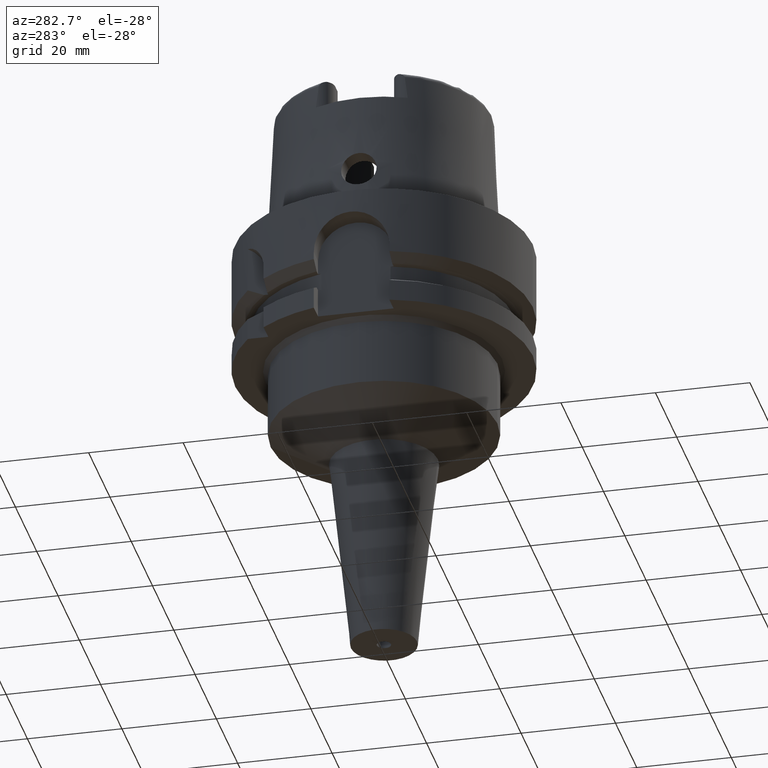
[diagram: clean part render]
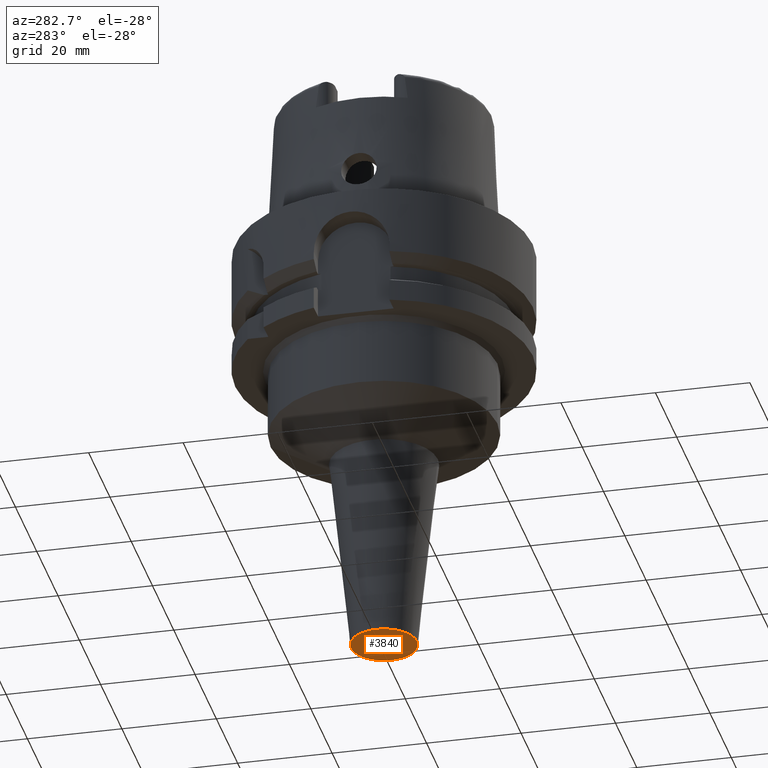
[diagram: same view with one face highlighted and labeled with its STEP entity id]
A machine part, auxiliary view. The second image highlights one B-rep face of the part: STEP entity #3840.
In plain terms, the highlighted planar face has unit normal (0, 0, -1).
Its self-contained STEP definition (entity closure, byte-faithful):
#1736=CARTESIAN_POINT('',(0.E0,0.E0,-9.E1));
#1737=DIRECTION('',(0.E0,0.E0,1.E0));
#1738=DIRECTION('',(0.E0,-1.E0,0.E0));
#1739=AXIS2_PLACEMENT_3D('',#1736,#1737,#1738);
#1744=CARTESIAN_POINT('',(0.E0,0.E0,-9.E1));
#1745=DIRECTION('',(0.E0,0.E0,1.E0));
#1746=DIRECTION('',(0.E0,1.E0,0.E0));
#1747=AXIS2_PLACEMENT_3D('',#1744,#1745,#1746);
#1752=CARTESIAN_POINT('',(0.E0,1.691237229622E-14,-9.E1));
#1753=DIRECTION('',(0.E0,0.E0,-1.E0));
#1754=DIRECTION('',(0.E0,-1.E0,0.E0));
#1755=AXIS2_PLACEMENT_3D('',#1752,#1753,#1754);
#1760=CARTESIAN_POINT('',(0.E0,1.691237229622E-14,-9.E1));
#1761=DIRECTION('',(0.E0,0.E0,-1.E0));
#1762=DIRECTION('',(0.E0,1.E0,0.E0));
#1763=AXIS2_PLACEMENT_3D('',#1760,#1761,#1762);
#2489=CARTESIAN_POINT('',(0.E0,7.E0,-9.E1));
#2490=VERTEX_POINT('',#2489);
#2491=CARTESIAN_POINT('',(0.E0,-7.E0,-9.E1));
#2492=VERTEX_POINT('',#2491);
#2493=CARTESIAN_POINT('',(0.E0,-1.5E0,-9.E1));
#2494=CARTESIAN_POINT('',(0.E0,1.5E0,-9.E1));
#2495=VERTEX_POINT('',#2493);
#2496=VERTEX_POINT('',#2494);
#3825=CARTESIAN_POINT('',(0.E0,0.E0,-9.E1));
#3826=DIRECTION('',(0.E0,0.E0,-1.E0));
#3827=DIRECTION('',(0.E0,-1.E0,0.E0));
#3828=AXIS2_PLACEMENT_3D('',#3825,#3826,#3827);
#3829=PLANE('',#3828);
#3830=ORIENTED_EDGE('',*,*,#3804,.T.);
#3831=ORIENTED_EDGE('',*,*,#3820,.T.);
#3832=EDGE_LOOP('',(#3830,#3831));
#3833=FACE_OUTER_BOUND('',#3832,.F.);
#3835=ORIENTED_EDGE('',*,*,#3834,.T.);
#3837=ORIENTED_EDGE('',*,*,#3836,.T.);
#3838=EDGE_LOOP('',(#3835,#3837));
#3839=FACE_BOUND('',#3838,.F.);
#1740=CIRCLE('',#1739,7.E0);
#1748=CIRCLE('',#1747,7.E0);
#1756=CIRCLE('',#1755,1.5E0);
#1764=CIRCLE('',#1763,1.5E0);
#3804=EDGE_CURVE('',#2492,#2490,#1740,.T.);
#3820=EDGE_CURVE('',#2490,#2492,#1748,.T.);
#3834=EDGE_CURVE('',#2495,#2496,#1756,.T.);
#3836=EDGE_CURVE('',#2496,#2495,#1764,.T.);
#3840=ADVANCED_FACE('',(#3833,#3839),#3829,.T.);